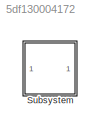
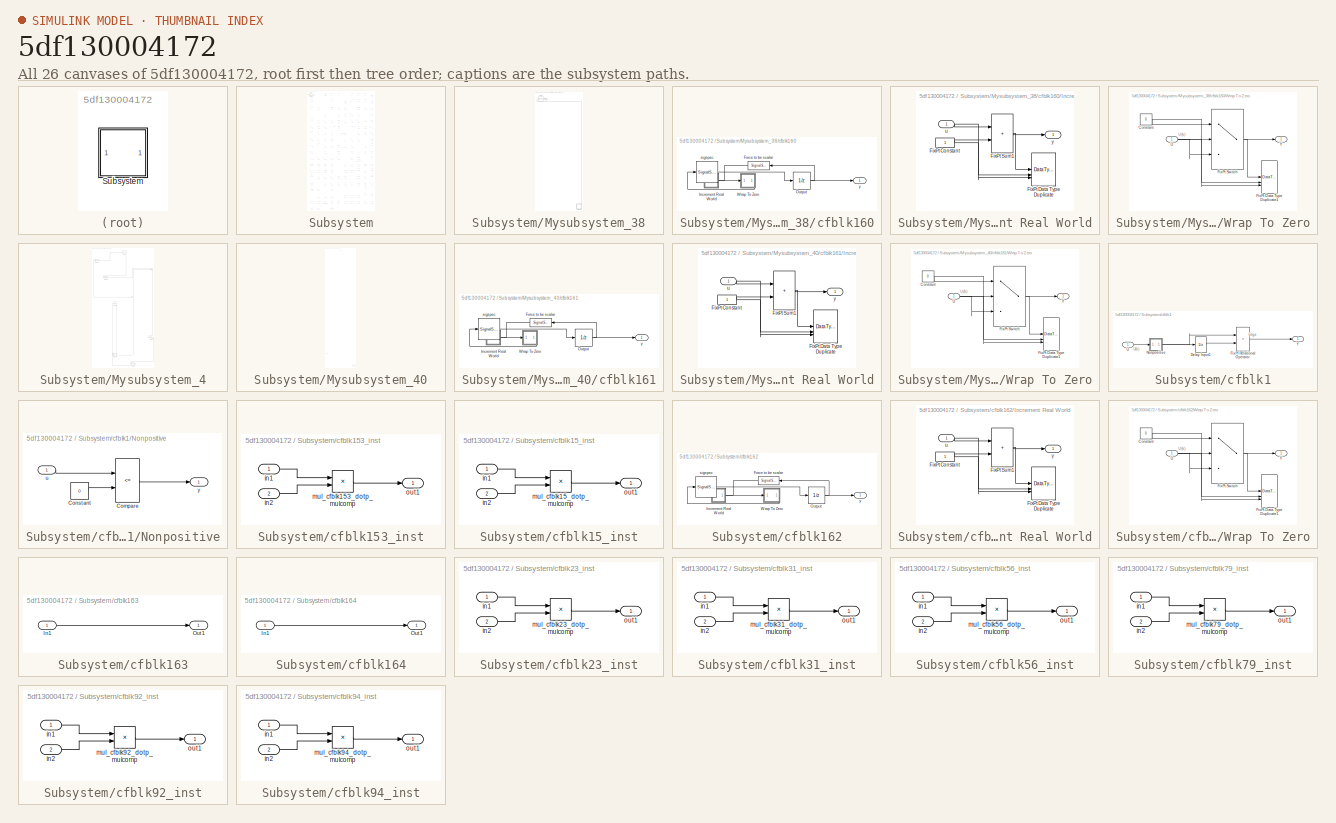
[diagram: thumbnail index - all 26 canvases of the model, root first then tree order]
MODEL slx_5df130004172
KIND model
CONFIG AbsTol = auto
CONFIG EnableMultiTasking = off
CONFIG FixedStep = auto
CONFIG MaxStep = auto
CONFIG MinStep = auto
CONFIG RelTol = 1e-3
CONFIG SampleTimeConstraint = Unconstrained
CONFIG SolverName = VariableStepAuto
CONFIG StartTime = 0.0
CONFIG StopTime = 10.0
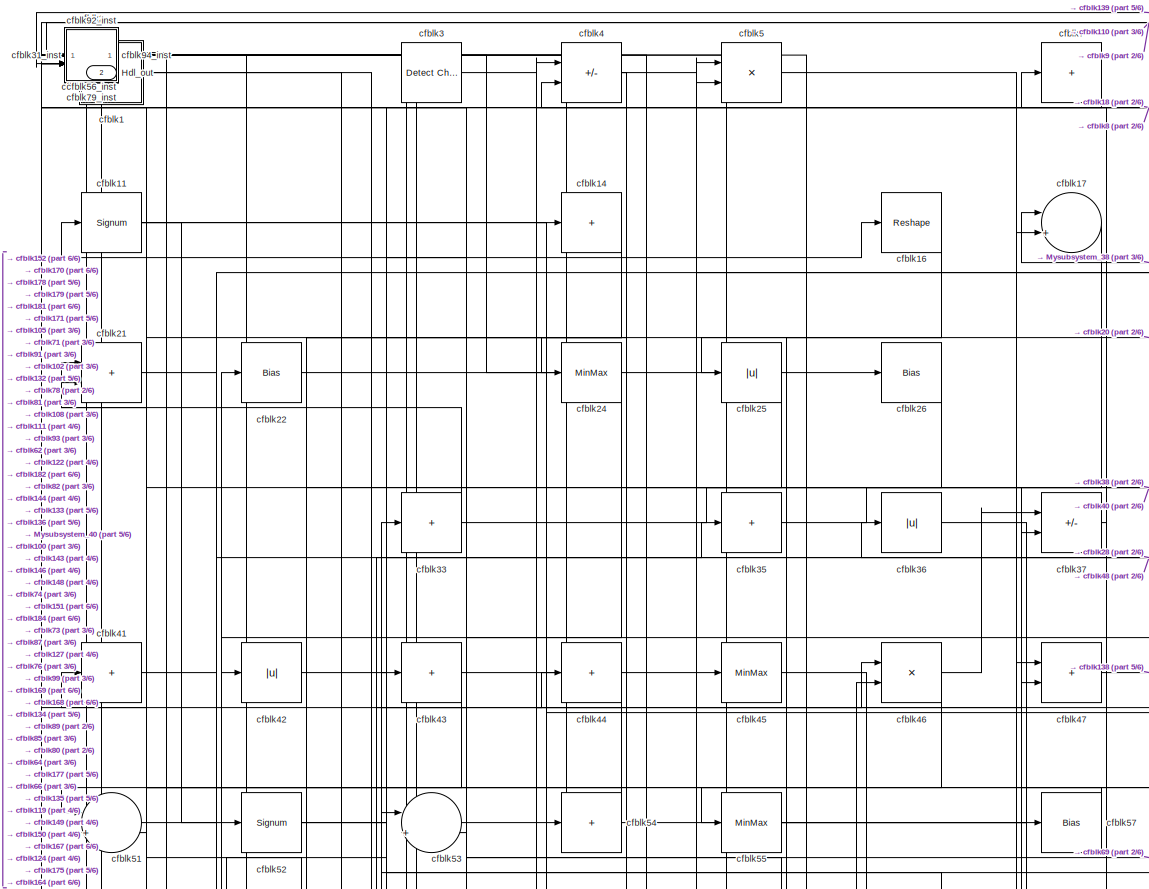
[diagram: Subsystem - part 1/6, top center region]
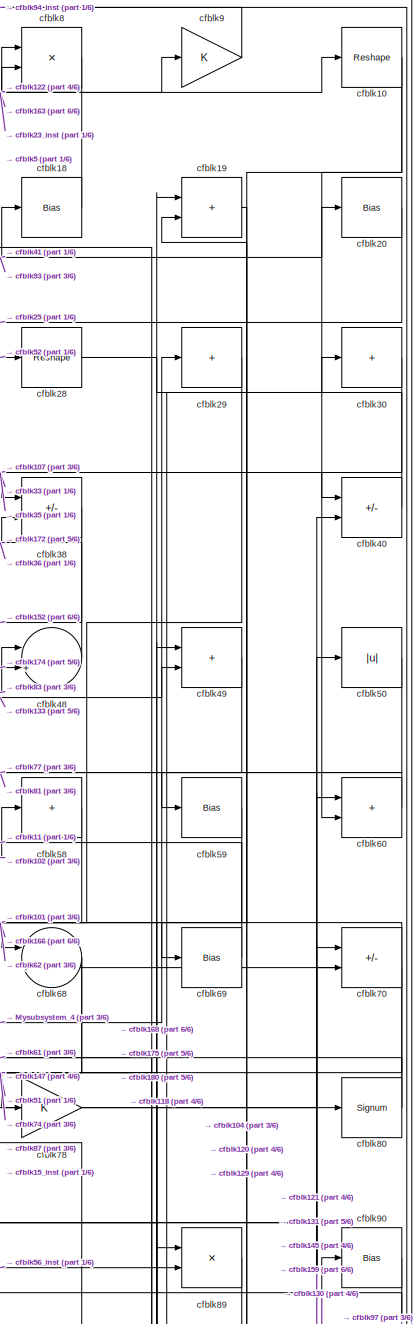
[diagram: Subsystem - part 2/6, top right region]
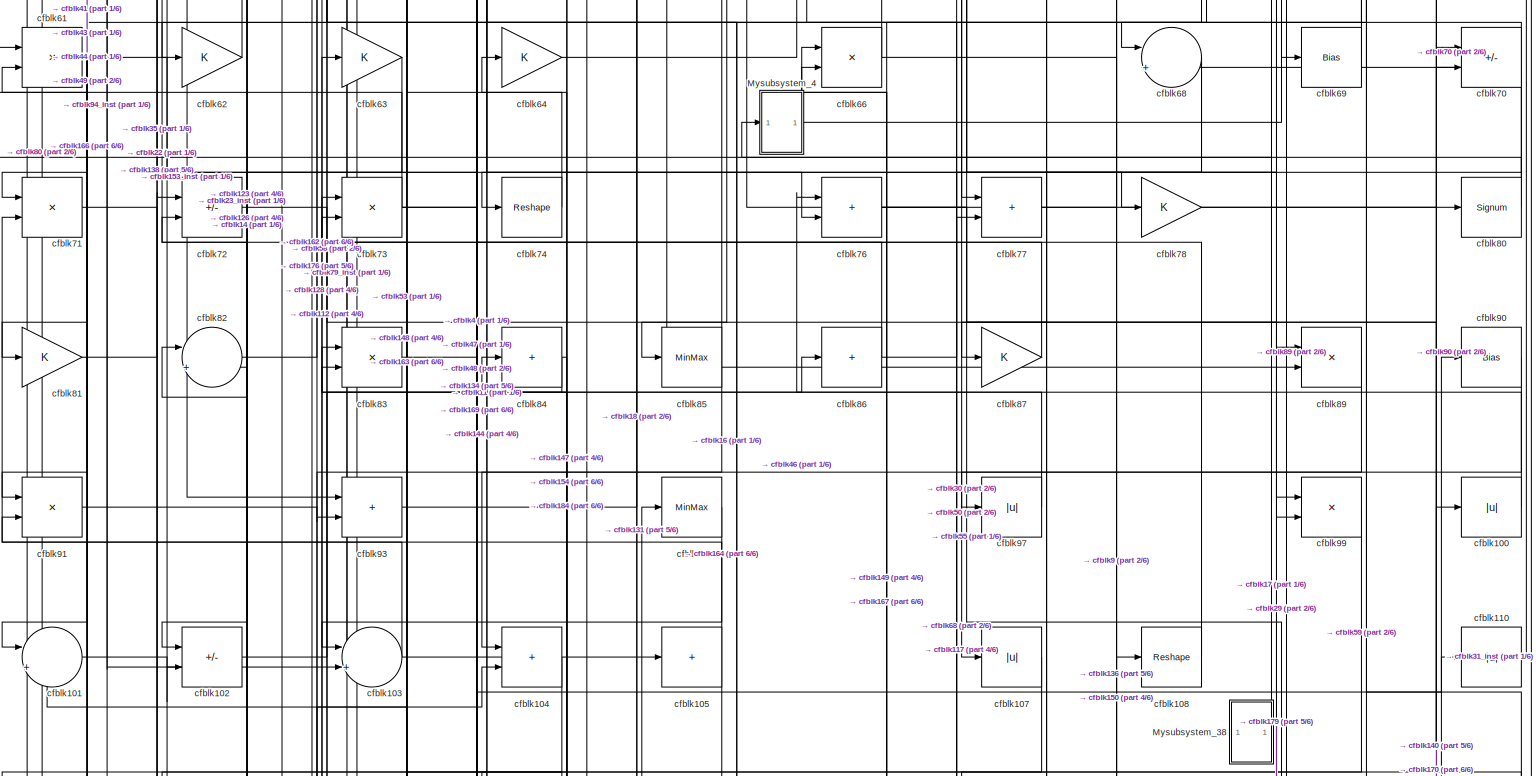
[diagram: Subsystem - part 3/6, full width, middle band]
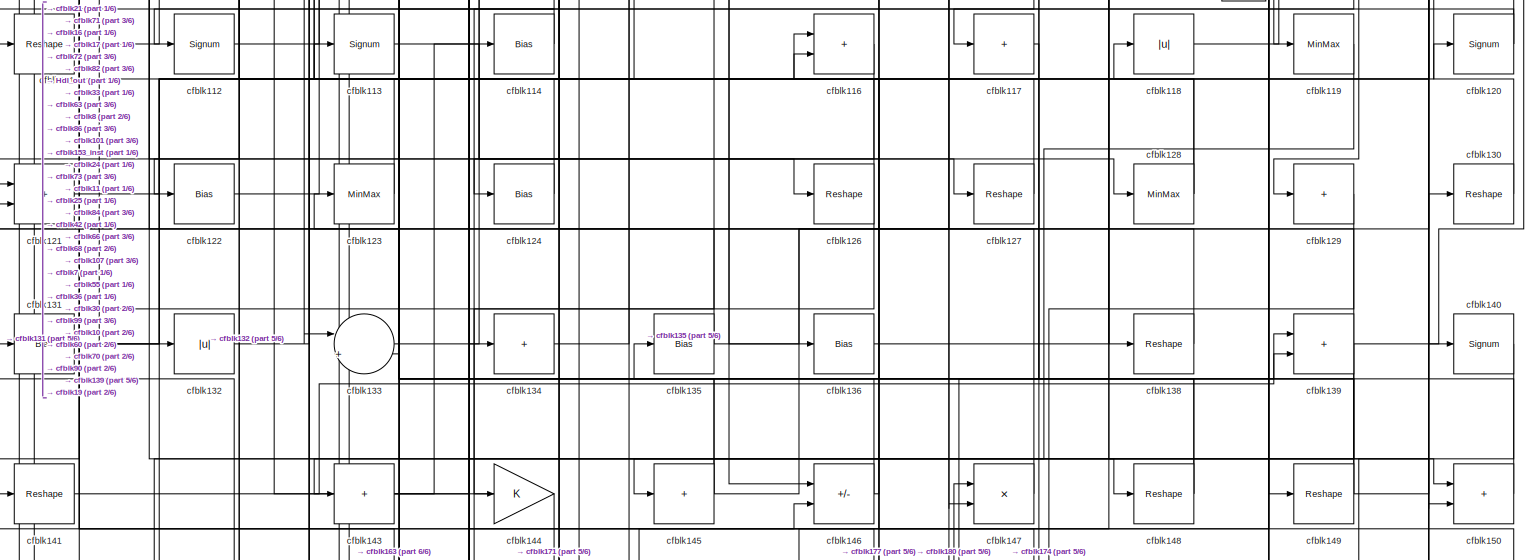
[diagram: Subsystem - part 4/6, full width, bottom band]
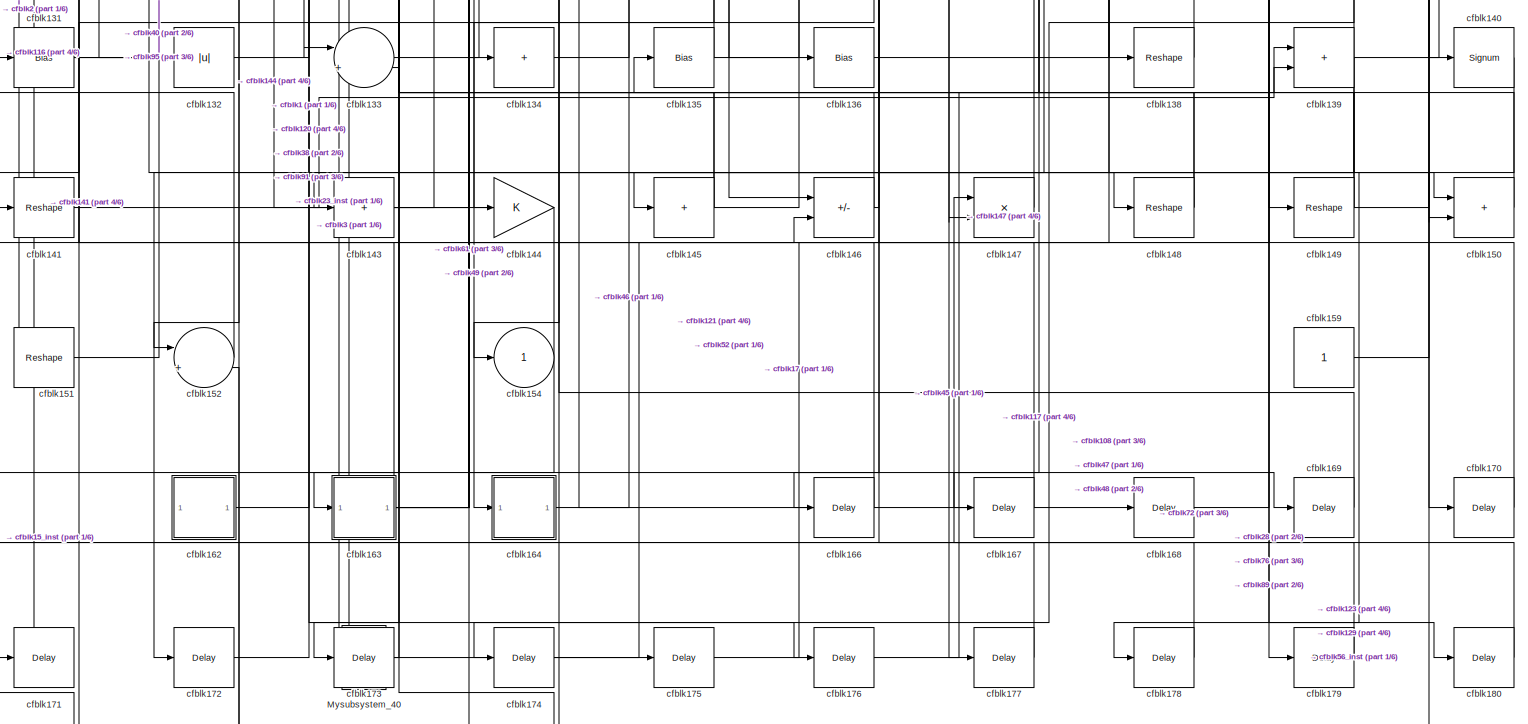
[diagram: Subsystem - part 5/6, full width, bottom band]
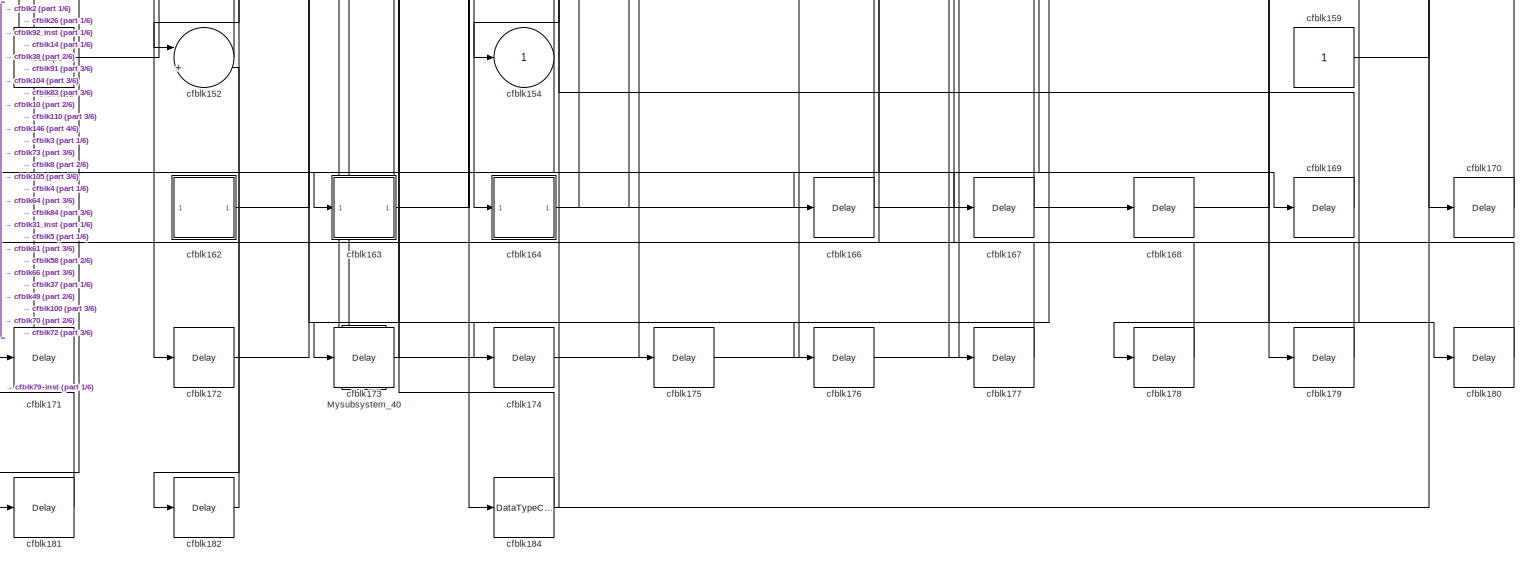
[diagram: Subsystem - part 6/6, full width, bottom band]
BLOCK [SubSystem] Subsystem
BLOCK [Outport] Subsystem/Hdl_out
  OutDataTypeStr = uint8
  Port = 2
  SampleTime = 1
BLOCK [SubSystem] Subsystem/Mysubsystem_38
BLOCK [Outport] Subsystem/Mysubsystem_38/Out1
  SampleTime = 1
BLOCK [SubSystem] Subsystem/Mysubsystem_38/cfblk160
BLOCK [SignalSpecification] Subsystem/Mysubsystem_38/cfblk160/Force to be scalar
  Dimensions = 1
  DisableCoverage = on
BLOCK [SubSystem] Subsystem/Mysubsystem_38/cfblk160/Increment Real World
BLOCK [Constant] Subsystem/Mysubsystem_38/cfblk160/Increment Real World/FixPt Constant
  DisableCoverage = on
  OutDataTypeStr = Inherit: Inherit via back propagation
  SampleTime = -1
BLOCK [DataTypeDuplicate] Subsystem/Mysubsystem_38/cfblk160/Increment Real World/FixPt Data Type Duplicate
  DisableCoverage = on
  NumInputPorts = 3
BLOCK [Sum] Subsystem/Mysubsystem_38/cfblk160/Increment Real World/FixPt Sum1
  IconShape = rectangular
  InputSameDT = on
  LockScale = on
  OutDataTypeStr = Inherit: Inherit via back propagation
BLOCK [Inport] Subsystem/Mysubsystem_38/cfblk160/Increment Real World/u
  OutDataTypeStr = uint16
  SampleTime = 1
BLOCK [Outport] Subsystem/Mysubsystem_38/cfblk160/Increment Real World/y
  SampleTime = 1
BLOCK [UnitDelay] Subsystem/Mysubsystem_38/cfblk160/Output
  HasFrameUpgradeWarning = on
  InitialCondition = 0.0
  SampleTime = tsamp
BLOCK [SubSystem] Subsystem/Mysubsystem_38/cfblk160/Wrap To Zero
BLOCK [Constant] Subsystem/Mysubsystem_38/cfblk160/Wrap To Zero/Constant
  DisableCoverage = on
  OutDataTypeStr = Inherit: Inherit via back propagation
  SampleTime = -1
  Value = 0
BLOCK [DataTypeDuplicate] Subsystem/Mysubsystem_38/cfblk160/Wrap To Zero/FixPt Data Type Duplicate1
  DisableCoverage = on
  NumInputPorts = 3
BLOCK [Switch] Subsystem/Mysubsystem_38/cfblk160/Wrap To Zero/FixPt Switch
  Criteria = u2 > Threshold
  InputSameDT = off
  OutDataTypeStr = Inherit: Inherit via back propagation
  SaturateOnIntegerOverflow = off
  Threshold = Threshold
  ZeroCross = off
BLOCK [Inport] Subsystem/Mysubsystem_38/cfblk160/Wrap To Zero/U
  OutDataTypeStr = uint16
  SampleTime = 1
BLOCK [Outport] Subsystem/Mysubsystem_38/cfblk160/Wrap To Zero/Y
  SampleTime = 1
BLOCK [SignalSpecification] Subsystem/Mysubsystem_38/cfblk160/sigspec
  Dimensions = 1
  OutDataTypeStr = uint16
BLOCK [Outport] Subsystem/Mysubsystem_38/cfblk160/y
  SampleTime = 1
BLOCK [Reshape] Subsystem/Mysubsystem_38/cfblk67
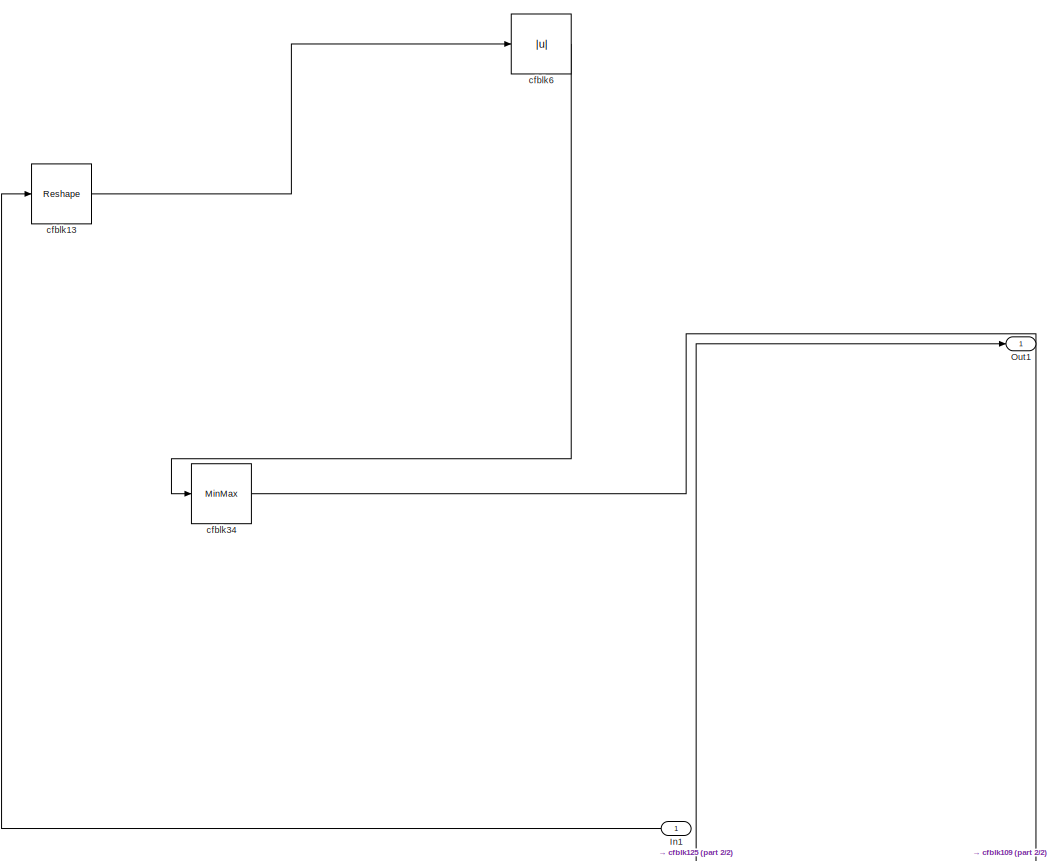
[diagram: Subsystem/Mysubsystem_4 - part 1/2, full width, top band]
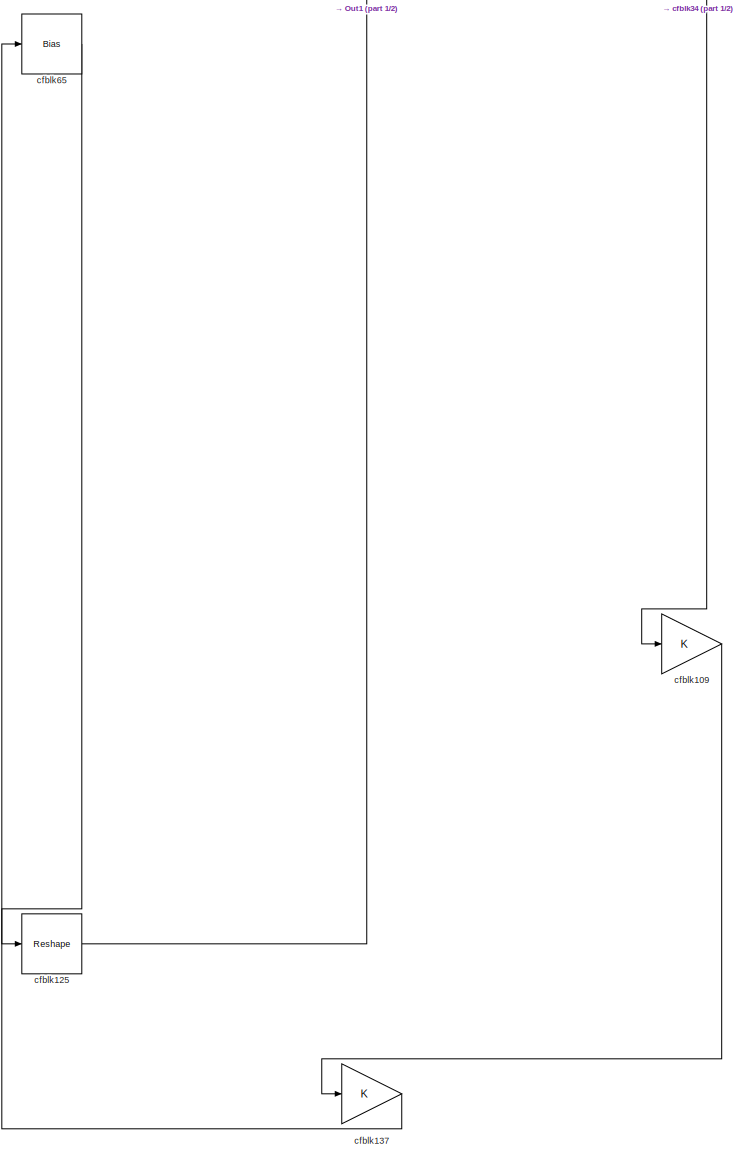
[diagram: Subsystem/Mysubsystem_4 - part 2/2, bottom center region]
BLOCK [SubSystem] Subsystem/Mysubsystem_4
BLOCK [Inport] Subsystem/Mysubsystem_4/In1
  OutDataTypeStr = uint16
  PortDimensions = 1
  SampleTime = 1
BLOCK [Outport] Subsystem/Mysubsystem_4/Out1
  SampleTime = 1
BLOCK [Gain] Subsystem/Mysubsystem_4/cfblk109
BLOCK [Reshape] Subsystem/Mysubsystem_4/cfblk125
BLOCK [Reshape] Subsystem/Mysubsystem_4/cfblk13
BLOCK [Gain] Subsystem/Mysubsystem_4/cfblk137
BLOCK [MinMax] Subsystem/Mysubsystem_4/cfblk34
BLOCK [Abs] Subsystem/Mysubsystem_4/cfblk6
  SaturateOnIntegerOverflow = off
BLOCK [Bias] Subsystem/Mysubsystem_4/cfblk65
  Bias = 0.0
  SaturateOnIntegerOverflow = off
BLOCK [SubSystem] Subsystem/Mysubsystem_40
BLOCK [Outport] Subsystem/Mysubsystem_40/Out1
  SampleTime = 1
BLOCK [SubSystem] Subsystem/Mysubsystem_40/cfblk161
BLOCK [SignalSpecification] Subsystem/Mysubsystem_40/cfblk161/Force to be scalar
  Dimensions = 1
  DisableCoverage = on
BLOCK [SubSystem] Subsystem/Mysubsystem_40/cfblk161/Increment Real World
BLOCK [Constant] Subsystem/Mysubsystem_40/cfblk161/Increment Real World/FixPt Constant
  DisableCoverage = on
  OutDataTypeStr = Inherit: Inherit via back propagation
  SampleTime = -1
BLOCK [DataTypeDuplicate] Subsystem/Mysubsystem_40/cfblk161/Increment Real World/FixPt Data Type Duplicate
  DisableCoverage = on
  NumInputPorts = 3
BLOCK [Sum] Subsystem/Mysubsystem_40/cfblk161/Increment Real World/FixPt Sum1
  IconShape = rectangular
  InputSameDT = on
  LockScale = on
  OutDataTypeStr = Inherit: Inherit via back propagation
BLOCK [Inport] Subsystem/Mysubsystem_40/cfblk161/Increment Real World/u
  OutDataTypeStr = uint16
  SampleTime = 1
BLOCK [Outport] Subsystem/Mysubsystem_40/cfblk161/Increment Real World/y
  SampleTime = 1
BLOCK [UnitDelay] Subsystem/Mysubsystem_40/cfblk161/Output
  HasFrameUpgradeWarning = on
  InitialCondition = 0.0
  SampleTime = tsamp
BLOCK [SubSystem] Subsystem/Mysubsystem_40/cfblk161/Wrap To Zero
BLOCK [Constant] Subsystem/Mysubsystem_40/cfblk161/Wrap To Zero/Constant
  DisableCoverage = on
  OutDataTypeStr = Inherit: Inherit via back propagation
  SampleTime = -1
  Value = 0
BLOCK [DataTypeDuplicate] Subsystem/Mysubsystem_40/cfblk161/Wrap To Zero/FixPt Data Type Duplicate1
  DisableCoverage = on
  NumInputPorts = 3
BLOCK [Switch] Subsystem/Mysubsystem_40/cfblk161/Wrap To Zero/FixPt Switch
  Criteria = u2 > Threshold
  InputSameDT = off
  OutDataTypeStr = Inherit: Inherit via back propagation
  SaturateOnIntegerOverflow = off
  Threshold = Threshold
  ZeroCross = off
BLOCK [Inport] Subsystem/Mysubsystem_40/cfblk161/Wrap To Zero/U
  OutDataTypeStr = uint16
  SampleTime = 1
BLOCK [Outport] Subsystem/Mysubsystem_40/cfblk161/Wrap To Zero/Y
  SampleTime = 1
BLOCK [SignalSpecification] Subsystem/Mysubsystem_40/cfblk161/sigspec
  Dimensions = 1
  OutDataTypeStr = uint16
BLOCK [Outport] Subsystem/Mysubsystem_40/cfblk161/y
  SampleTime = 1
BLOCK [DataTypeConversion] Subsystem/Mysubsystem_40/cfblk185
  OutDataTypeStr = uint8
  RndMeth = Floor
  SaturateOnIntegerOverflow = off
BLOCK [SubSystem] Subsystem/cfblk1
BLOCK [UnitDelay] Subsystem/cfblk1/Delay Input1
  Description = Store in Global RAM
  DisableCoverage = on
  HasFrameUpgradeWarning = on
  InitialCondition = vinit
  SampleTime = -1
BLOCK [RelationalOperator] Subsystem/cfblk1/FixPt Relational Operator
  InputSameDT = off
  Operator = >
  OutDataTypeStr = fixdt(0, 8)
  ZeroCross = off
BLOCK [SubSystem] Subsystem/cfblk1/Nonpositive
BLOCK [RelationalOperator] Subsystem/cfblk1/Nonpositive/Compare
  Operator = <=
  OutDataTypeStr = boolean
  ZeroCross = off
BLOCK [Constant] Subsystem/cfblk1/Nonpositive/Constant
  DisableCoverage = on
  OutDataTypeStr = Inherit: Inherit via back propagation
  PreserveConstantTs = on
  SampleTime = -1
  Value = 0
BLOCK [Inport] Subsystem/cfblk1/Nonpositive/u
  OutDataTypeStr = uint8
  SampleTime = 1
BLOCK [Outport] Subsystem/cfblk1/Nonpositive/y
  SampleTime = 1
BLOCK [Inport] Subsystem/cfblk1/U
  OutDataTypeStr = uint8
  SampleTime = 1
BLOCK [Outport] Subsystem/cfblk1/Y
  SampleTime = 1
BLOCK [Reshape] Subsystem/cfblk10
BLOCK [Abs] Subsystem/cfblk100
  OutDataTypeStr = uint8
  SaturateOnIntegerOverflow = off
BLOCK [Sum] Subsystem/cfblk101
  Inputs = |++
  OutDataTypeStr = uint8
BLOCK [Sum] Subsystem/cfblk102
  IconShape = rectangular
  Inputs = +-
  OutDataTypeStr = uint8
BLOCK [Sum] Subsystem/cfblk103
  Inputs = |++
  OutDataTypeStr = uint8
BLOCK [Sum] Subsystem/cfblk104
  IconShape = rectangular
  OutDataTypeStr = uint8
BLOCK [Sum] Subsystem/cfblk105
  IconShape = rectangular
  Inputs = +
  OutDataTypeStr = uint8
BLOCK [Abs] Subsystem/cfblk107
  OutDataTypeStr = uint8
  SaturateOnIntegerOverflow = off
BLOCK [Reshape] Subsystem/cfblk108
BLOCK [Signum] Subsystem/cfblk11
BLOCK [Abs] Subsystem/cfblk110
  OutDataTypeStr = uint8
  SaturateOnIntegerOverflow = off
BLOCK [Reshape] Subsystem/cfblk111
BLOCK [Signum] Subsystem/cfblk112
BLOCK [Signum] Subsystem/cfblk113
BLOCK [Bias] Subsystem/cfblk114
  Bias = 0.0
  SaturateOnIntegerOverflow = off
BLOCK [Sum] Subsystem/cfblk116
  IconShape = rectangular
  OutDataTypeStr = uint8
BLOCK [Sum] Subsystem/cfblk117
  IconShape = rectangular
  Inputs = +
  OutDataTypeStr = uint8
BLOCK [Abs] Subsystem/cfblk118
  OutDataTypeStr = uint8
  SaturateOnIntegerOverflow = off
BLOCK [MinMax] Subsystem/cfblk119
  OutDataTypeStr = uint8
BLOCK [Signum] Subsystem/cfblk120
BLOCK [Sum] Subsystem/cfblk121
  IconShape = rectangular
  OutDataTypeStr = uint8
BLOCK [Bias] Subsystem/cfblk122
  Bias = 0.0
  SaturateOnIntegerOverflow = off
BLOCK [MinMax] Subsystem/cfblk123
  OutDataTypeStr = uint8
BLOCK [Bias] Subsystem/cfblk124
  Bias = 0.0
  SaturateOnIntegerOverflow = off
BLOCK [Reshape] Subsystem/cfblk126
BLOCK [Reshape] Subsystem/cfblk127
BLOCK [MinMax] Subsystem/cfblk128
  OutDataTypeStr = uint8
BLOCK [Sum] Subsystem/cfblk129
  IconShape = rectangular
  Inputs = +
  OutDataTypeStr = uint8
BLOCK [Reshape] Subsystem/cfblk130
BLOCK [Bias] Subsystem/cfblk131
  Bias = 0.0
  SaturateOnIntegerOverflow = off
BLOCK [Abs] Subsystem/cfblk132
  OutDataTypeStr = uint8
  SaturateOnIntegerOverflow = off
BLOCK [Sum] Subsystem/cfblk133
  Inputs = |++
  OutDataTypeStr = uint8
BLOCK [Sum] Subsystem/cfblk134
  IconShape = rectangular
  Inputs = +
  OutDataTypeStr = uint8
BLOCK [Bias] Subsystem/cfblk135
  Bias = 0.0
  SaturateOnIntegerOverflow = off
BLOCK [Bias] Subsystem/cfblk136
  Bias = 0.0
  SaturateOnIntegerOverflow = off
BLOCK [Reshape] Subsystem/cfblk138
BLOCK [Sum] Subsystem/cfblk139
  IconShape = rectangular
  OutDataTypeStr = uint8
BLOCK [Sum] Subsystem/cfblk14
  IconShape = rectangular
  Inputs = +
  OutDataTypeStr = uint8
BLOCK [Signum] Subsystem/cfblk140
BLOCK [Reshape] Subsystem/cfblk141
BLOCK [Sum] Subsystem/cfblk143
  IconShape = rectangular
  Inputs = +
  OutDataTypeStr = uint8
BLOCK [Gain] Subsystem/cfblk144
  OutDataTypeStr = uint8
BLOCK [Sum] Subsystem/cfblk145
  IconShape = rectangular
  Inputs = +
  OutDataTypeStr = uint8
BLOCK [Sum] Subsystem/cfblk146
  IconShape = rectangular
  Inputs = +-
  OutDataTypeStr = uint8
BLOCK [Product] Subsystem/cfblk147
  Inputs = */
  OutDataTypeStr = uint8
  RndMeth = Zero
  SaturateOnIntegerOverflow = on
BLOCK [Reshape] Subsystem/cfblk148
BLOCK [Reshape] Subsystem/cfblk149
BLOCK [Sum] Subsystem/cfblk150
  IconShape = rectangular
  OutDataTypeStr = uint8
BLOCK [Reshape] Subsystem/cfblk151
BLOCK [Sum] Subsystem/cfblk152
  Inputs = |++
  OutDataTypeStr = uint8
BLOCK [SubSystem] Subsystem/cfblk153_inst
BLOCK [Inport] Subsystem/cfblk153_inst/in1
  OutDataTypeStr = uint8
  SampleTime = 1
BLOCK [Inport] Subsystem/cfblk153_inst/in2
  OutDataTypeStr = uint8
  Port = 2
  SampleTime = 1
BLOCK [Product] Subsystem/cfblk153_inst/mul_cfblk153_dotp_mulcomp
  Inputs = **
  OutDataTypeStr = uint8
  SampleTime = 1
BLOCK [Outport] Subsystem/cfblk153_inst/out1
  OutDataTypeStr = uint8
  SampleTime = 1
BLOCK [Outport] Subsystem/cfblk154
  OutDataTypeStr = uint8
  SampleTime = 1
  VectorParamsAs1DForOutWhenUnconnected = off
BLOCK [Constant] Subsystem/cfblk159
  OutDataTypeStr = uint8
  SampleTime = -1
BLOCK [SubSystem] Subsystem/cfblk15_inst
BLOCK [Inport] Subsystem/cfblk15_inst/in1
  OutDataTypeStr = uint8
  SampleTime = 1
BLOCK [Inport] Subsystem/cfblk15_inst/in2
  OutDataTypeStr = uint8
  Port = 2
  SampleTime = 1
BLOCK [Product] Subsystem/cfblk15_inst/mul_cfblk15_dotp_mulcomp
  Inputs = **
  OutDataTypeStr = uint8
  SampleTime = 1
BLOCK [Outport] Subsystem/cfblk15_inst/out1
  OutDataTypeStr = uint8
  SampleTime = 1
BLOCK [Reshape] Subsystem/cfblk16
BLOCK [SubSystem] Subsystem/cfblk162
BLOCK [SignalSpecification] Subsystem/cfblk162/Force to be scalar
  Dimensions = 1
  DisableCoverage = on
BLOCK [SubSystem] Subsystem/cfblk162/Increment Real World
BLOCK [Constant] Subsystem/cfblk162/Increment Real World/FixPt Constant
  DisableCoverage = on
  OutDataTypeStr = Inherit: Inherit via back propagation
  SampleTime = -1
BLOCK [DataTypeDuplicate] Subsystem/cfblk162/Increment Real World/FixPt Data Type Duplicate
  DisableCoverage = on
  NumInputPorts = 3
BLOCK [Sum] Subsystem/cfblk162/Increment Real World/FixPt Sum1
  IconShape = rectangular
  InputSameDT = on
  LockScale = on
  OutDataTypeStr = Inherit: Inherit via back propagation
BLOCK [Inport] Subsystem/cfblk162/Increment Real World/u
  OutDataTypeStr = uint8
  SampleTime = 1
BLOCK [Outport] Subsystem/cfblk162/Increment Real World/y
  SampleTime = 1
BLOCK [UnitDelay] Subsystem/cfblk162/Output
  HasFrameUpgradeWarning = on
  InitialCondition = 0.0
  SampleTime = tsamp
BLOCK [SubSystem] Subsystem/cfblk162/Wrap To Zero
BLOCK [Constant] Subsystem/cfblk162/Wrap To Zero/Constant
  DisableCoverage = on
  OutDataTypeStr = Inherit: Inherit via back propagation
  SampleTime = -1
  Value = 0
BLOCK [DataTypeDuplicate] Subsystem/cfblk162/Wrap To Zero/FixPt Data Type Duplicate1
  DisableCoverage = on
  NumInputPorts = 3
BLOCK [Switch] Subsystem/cfblk162/Wrap To Zero/FixPt Switch
  Criteria = u2 > Threshold
  InputSameDT = off
  OutDataTypeStr = Inherit: Inherit via back propagation
  SaturateOnIntegerOverflow = off
  Threshold = Threshold
  ZeroCross = off
BLOCK [Inport] Subsystem/cfblk162/Wrap To Zero/U
  OutDataTypeStr = uint8
  SampleTime = 1
BLOCK [Outport] Subsystem/cfblk162/Wrap To Zero/Y
  SampleTime = 1
BLOCK [SignalSpecification] Subsystem/cfblk162/sigspec
  Dimensions = 1
  OutDataTypeStr = uint8
BLOCK [Outport] Subsystem/cfblk162/y
  SampleTime = 1
BLOCK [SubSystem] Subsystem/cfblk163
BLOCK [Inport] Subsystem/cfblk163/In1
  OutDataTypeStr = uint8
  PortDimensions = 1
  SampleTime = 1
BLOCK [Outport] Subsystem/cfblk163/Out1
  SampleTime = 1
BLOCK [SubSystem] Subsystem/cfblk164
BLOCK [Inport] Subsystem/cfblk164/In1
  OutDataTypeStr = uint8
  PortDimensions = 1
  SampleTime = 1
BLOCK [Outport] Subsystem/cfblk164/Out1
  SampleTime = 1
BLOCK [Delay] Subsystem/cfblk166
  InputPortMap = u0
  SampleTime = 1
BLOCK [Delay] Subsystem/cfblk167
  InputPortMap = u0
  SampleTime = 1
BLOCK [Delay] Subsystem/cfblk168
  InputPortMap = u0
  SampleTime = 1
BLOCK [Delay] Subsystem/cfblk169
  InputPortMap = u0
  SampleTime = 1
BLOCK [Sum] Subsystem/cfblk17
  Inputs = |++
  OutDataTypeStr = uint8
BLOCK [Delay] Subsystem/cfblk170
  InputPortMap = u0
  SampleTime = 1
BLOCK [Delay] Subsystem/cfblk171
  InputPortMap = u0
  SampleTime = 1
BLOCK [Delay] Subsystem/cfblk172
  InputPortMap = u0
  SampleTime = 1
BLOCK [Delay] Subsystem/cfblk173
  InputPortMap = u0
  SampleTime = 1
BLOCK [Delay] Subsystem/cfblk174
  InputPortMap = u0
  SampleTime = 1
BLOCK [Delay] Subsystem/cfblk175
  InputPortMap = u0
  SampleTime = 1
BLOCK [Delay] Subsystem/cfblk176
  InputPortMap = u0
  SampleTime = 1
BLOCK [Delay] Subsystem/cfblk177
  InputPortMap = u0
  SampleTime = 1
BLOCK [Delay] Subsystem/cfblk178
  InputPortMap = u0
  SampleTime = 1
BLOCK [Delay] Subsystem/cfblk179
  InputPortMap = u0
  SampleTime = 1
BLOCK [Bias] Subsystem/cfblk18
  Bias = 0.0
  SaturateOnIntegerOverflow = off
BLOCK [Delay] Subsystem/cfblk180
  InputPortMap = u0
  SampleTime = 1
BLOCK [Delay] Subsystem/cfblk181
  InputPortMap = u0
  SampleTime = 1
BLOCK [Delay] Subsystem/cfblk182
  InputPortMap = u0
  SampleTime = 1
BLOCK [DataTypeConversion] Subsystem/cfblk184
  OutDataTypeStr = uint8
  RndMeth = Floor
  SaturateOnIntegerOverflow = off
BLOCK [Sum] Subsystem/cfblk19
  IconShape = rectangular
  OutDataTypeStr = uint8
BLOCK [Constant] Subsystem/cfblk2
  OutDataTypeStr = uint8
  SampleTime = 1
  Value = 0
BLOCK [Bias] Subsystem/cfblk20
  Bias = 0.0
  SaturateOnIntegerOverflow = off
BLOCK [Sum] Subsystem/cfblk21
  IconShape = rectangular
  OutDataTypeStr = uint8
BLOCK [Bias] Subsystem/cfblk22
  Bias = 0.0
  SaturateOnIntegerOverflow = off
BLOCK [SubSystem] Subsystem/cfblk23_inst
BLOCK [Inport] Subsystem/cfblk23_inst/in1
  OutDataTypeStr = uint8
  SampleTime = 1
BLOCK [Inport] Subsystem/cfblk23_inst/in2
  OutDataTypeStr = uint8
  Port = 2
  SampleTime = 1
BLOCK [Product] Subsystem/cfblk23_inst/mul_cfblk23_dotp_mulcomp
  Inputs = **
  OutDataTypeStr = uint8
  SampleTime = 1
BLOCK [Outport] Subsystem/cfblk23_inst/out1
  OutDataTypeStr = uint8
  SampleTime = 1
BLOCK [MinMax] Subsystem/cfblk24
  OutDataTypeStr = uint8
BLOCK [Abs] Subsystem/cfblk25
  OutDataTypeStr = uint8
  SaturateOnIntegerOverflow = off
BLOCK [Bias] Subsystem/cfblk26
  Bias = 0.0
  SaturateOnIntegerOverflow = off
BLOCK [Reshape] Subsystem/cfblk28
BLOCK [Sum] Subsystem/cfblk29
  IconShape = rectangular
  Inputs = +
  OutDataTypeStr = uint8
BLOCK [Reference] Subsystem/cfblk3  REF=simulink/Logic and Bit
Operations/Detect
Change
  LibrarySourceBlock = hdlsllib/Logic and Bit\nOperations/Detect\nChange
  SourceBlock = simulink/Logic and Bit\nOperations/Detect\nChange
  SourceType = Detect Change
BLOCK [Sum] Subsystem/cfblk30
  IconShape = rectangular
  Inputs = +
  OutDataTypeStr = uint8
BLOCK [SubSystem] Subsystem/cfblk31_inst
BLOCK [Inport] Subsystem/cfblk31_inst/in1
  OutDataTypeStr = uint8
  SampleTime = 1
BLOCK [Inport] Subsystem/cfblk31_inst/in2
  OutDataTypeStr = uint8
  Port = 2
  SampleTime = 1
BLOCK [Product] Subsystem/cfblk31_inst/mul_cfblk31_dotp_mulcomp
  Inputs = **
  OutDataTypeStr = uint8
  SampleTime = 1
BLOCK [Outport] Subsystem/cfblk31_inst/out1
  OutDataTypeStr = uint8
  SampleTime = 1
BLOCK [Sum] Subsystem/cfblk33
  IconShape = rectangular
  Inputs = +
  OutDataTypeStr = uint8
BLOCK [Sum] Subsystem/cfblk35
  IconShape = rectangular
  Inputs = +
  OutDataTypeStr = uint8
BLOCK [Abs] Subsystem/cfblk36
  OutDataTypeStr = uint8
  SaturateOnIntegerOverflow = off
BLOCK [Sum] Subsystem/cfblk37
  IconShape = rectangular
  Inputs = +-
  OutDataTypeStr = uint8
BLOCK [Sum] Subsystem/cfblk38
  IconShape = rectangular
  Inputs = +-
  OutDataTypeStr = uint8
BLOCK [Sum] Subsystem/cfblk4
  IconShape = rectangular
  Inputs = +-
  OutDataTypeStr = uint8
BLOCK [Sum] Subsystem/cfblk40
  IconShape = rectangular
  Inputs = +-
  OutDataTypeStr = uint8
BLOCK [Sum] Subsystem/cfblk41
  IconShape = rectangular
  Inputs = +
  OutDataTypeStr = uint8
BLOCK [Abs] Subsystem/cfblk42
  OutDataTypeStr = uint8
  SaturateOnIntegerOverflow = off
BLOCK [Sum] Subsystem/cfblk43
  IconShape = rectangular
  Inputs = +
  OutDataTypeStr = uint8
BLOCK [Sum] Subsystem/cfblk44
  IconShape = rectangular
  Inputs = +
  OutDataTypeStr = uint8
BLOCK [MinMax] Subsystem/cfblk45
  OutDataTypeStr = uint8
BLOCK [Product] Subsystem/cfblk46
  Inputs = */
  OutDataTypeStr = uint8
  RndMeth = Zero
  SaturateOnIntegerOverflow = on
BLOCK [Sum] Subsystem/cfblk47
  IconShape = rectangular
  OutDataTypeStr = uint8
BLOCK [Sum] Subsystem/cfblk48
  Inputs = |++
  OutDataTypeStr = uint8
BLOCK [Sum] Subsystem/cfblk49
  IconShape = rectangular
  OutDataTypeStr = uint8
BLOCK [Product] Subsystem/cfblk5
  Inputs = */
  OutDataTypeStr = uint8
  RndMeth = Zero
  SaturateOnIntegerOverflow = on
BLOCK [Abs] Subsystem/cfblk50
  OutDataTypeStr = uint8
  SaturateOnIntegerOverflow = off
BLOCK [Sum] Subsystem/cfblk51
  Inputs = |++
  OutDataTypeStr = uint8
BLOCK [Signum] Subsystem/cfblk52
BLOCK [Sum] Subsystem/cfblk53
  Inputs = |++
  OutDataTypeStr = uint8
BLOCK [Sum] Subsystem/cfblk54
  IconShape = rectangular
  Inputs = +
  OutDataTypeStr = uint8
BLOCK [MinMax] Subsystem/cfblk55
  OutDataTypeStr = uint8
BLOCK [SubSystem] Subsystem/cfblk56_inst
BLOCK [Inport] Subsystem/cfblk56_inst/in1
  OutDataTypeStr = uint8
  SampleTime = 1
BLOCK [Inport] Subsystem/cfblk56_inst/in2
  OutDataTypeStr = uint8
  Port = 2
  SampleTime = 1
BLOCK [Product] Subsystem/cfblk56_inst/mul_cfblk56_dotp_mulcomp
  Inputs = **
  OutDataTypeStr = uint8
  SampleTime = 1
BLOCK [Outport] Subsystem/cfblk56_inst/out1
  OutDataTypeStr = uint8
  SampleTime = 1
BLOCK [Bias] Subsystem/cfblk57
  Bias = 0.0
  SaturateOnIntegerOverflow = off
BLOCK [Sum] Subsystem/cfblk58
  IconShape = rectangular
  Inputs = +
  OutDataTypeStr = uint8
BLOCK [Bias] Subsystem/cfblk59
  Bias = 0.0
  SaturateOnIntegerOverflow = off
BLOCK [Sum] Subsystem/cfblk60
  IconShape = rectangular
  OutDataTypeStr = uint8
BLOCK [Product] Subsystem/cfblk61
  Inputs = */
  OutDataTypeStr = uint8
  RndMeth = Zero
  SaturateOnIntegerOverflow = on
BLOCK [Gain] Subsystem/cfblk62
  OutDataTypeStr = uint8
BLOCK [Gain] Subsystem/cfblk63
  OutDataTypeStr = uint8
BLOCK [Gain] Subsystem/cfblk64
  OutDataTypeStr = uint8
BLOCK [Product] Subsystem/cfblk66
  Inputs = */
  OutDataTypeStr = uint8
  RndMeth = Zero
  SaturateOnIntegerOverflow = on
BLOCK [Sum] Subsystem/cfblk68
  Inputs = |++
  OutDataTypeStr = uint8
BLOCK [Bias] Subsystem/cfblk69
  Bias = 0.0
  SaturateOnIntegerOverflow = off
BLOCK [Sum] Subsystem/cfblk7
  IconShape = rectangular
  Inputs = +
  OutDataTypeStr = uint8
BLOCK [Sum] Subsystem/cfblk70
  IconShape = rectangular
  Inputs = +-
  OutDataTypeStr = uint8
BLOCK [Product] Subsystem/cfblk71
  Inputs = */
  OutDataTypeStr = uint8
  RndMeth = Zero
  SaturateOnIntegerOverflow = on
BLOCK [Sum] Subsystem/cfblk72
  IconShape = rectangular
  Inputs = +-
  OutDataTypeStr = uint8
BLOCK [Product] Subsystem/cfblk73
  Inputs = */
  OutDataTypeStr = uint8
  RndMeth = Zero
  SaturateOnIntegerOverflow = on
BLOCK [Reshape] Subsystem/cfblk74
BLOCK [Sum] Subsystem/cfblk76
  IconShape = rectangular
  OutDataTypeStr = uint8
BLOCK [Sum] Subsystem/cfblk77
  IconShape = rectangular
  OutDataTypeStr = uint8
BLOCK [Gain] Subsystem/cfblk78
  OutDataTypeStr = uint8
BLOCK [SubSystem] Subsystem/cfblk79_inst
BLOCK [Inport] Subsystem/cfblk79_inst/in1
  OutDataTypeStr = uint8
  SampleTime = 1
BLOCK [Inport] Subsystem/cfblk79_inst/in2
  OutDataTypeStr = uint8
  Port = 2
  SampleTime = 1
BLOCK [Product] Subsystem/cfblk79_inst/mul_cfblk79_dotp_mulcomp
  Inputs = **
  OutDataTypeStr = uint8
  SampleTime = 1
BLOCK [Outport] Subsystem/cfblk79_inst/out1
  OutDataTypeStr = uint8
  SampleTime = 1
BLOCK [Product] Subsystem/cfblk8
  Inputs = */
  OutDataTypeStr = uint8
  RndMeth = Zero
  SaturateOnIntegerOverflow = on
BLOCK [Signum] Subsystem/cfblk80
BLOCK [Gain] Subsystem/cfblk81
  OutDataTypeStr = uint8
BLOCK [Sum] Subsystem/cfblk82
  Inputs = |++
  OutDataTypeStr = uint8
BLOCK [Product] Subsystem/cfblk83
  Inputs = */
  OutDataTypeStr = uint8
  RndMeth = Zero
  SaturateOnIntegerOverflow = on
BLOCK [Sum] Subsystem/cfblk84
  IconShape = rectangular
  Inputs = +
  OutDataTypeStr = uint8
BLOCK [MinMax] Subsystem/cfblk85
  OutDataTypeStr = uint8
BLOCK [Sum] Subsystem/cfblk86
  IconShape = rectangular
  Inputs = +
  OutDataTypeStr = uint8
BLOCK [Gain] Subsystem/cfblk87
  OutDataTypeStr = uint8
BLOCK [Product] Subsystem/cfblk89
  Inputs = */
  OutDataTypeStr = uint8
  RndMeth = Zero
  SaturateOnIntegerOverflow = on
BLOCK [Gain] Subsystem/cfblk9
  OutDataTypeStr = uint8
BLOCK [Bias] Subsystem/cfblk90
  Bias = 0.0
  SaturateOnIntegerOverflow = off
BLOCK [Product] Subsystem/cfblk91
  Inputs = */
  OutDataTypeStr = uint8
  RndMeth = Zero
  SaturateOnIntegerOverflow = on
BLOCK [SubSystem] Subsystem/cfblk92_inst
BLOCK [Inport] Subsystem/cfblk92_inst/in1
  OutDataTypeStr = uint8
  SampleTime = 1
BLOCK [Inport] Subsystem/cfblk92_inst/in2
  OutDataTypeStr = uint8
  Port = 2
  SampleTime = 1
BLOCK [Product] Subsystem/cfblk92_inst/mul_cfblk92_dotp_mulcomp
  Inputs = **
  OutDataTypeStr = uint8
  SampleTime = 1
BLOCK [Outport] Subsystem/cfblk92_inst/out1
  OutDataTypeStr = uint8
  SampleTime = 1
BLOCK [Sum] Subsystem/cfblk93
  IconShape = rectangular
  OutDataTypeStr = uint8
BLOCK [SubSystem] Subsystem/cfblk94_inst
BLOCK [Inport] Subsystem/cfblk94_inst/in1
  OutDataTypeStr = uint8
  SampleTime = 1
BLOCK [Inport] Subsystem/cfblk94_inst/in2
  OutDataTypeStr = uint8
  Port = 2
  SampleTime = 1
BLOCK [Product] Subsystem/cfblk94_inst/mul_cfblk94_dotp_mulcomp
  Inputs = **
  OutDataTypeStr = uint8
  SampleTime = 1
BLOCK [Outport] Subsystem/cfblk94_inst/out1
  OutDataTypeStr = uint8
  SampleTime = 1
BLOCK [MinMax] Subsystem/cfblk95
  OutDataTypeStr = uint8
BLOCK [Abs] Subsystem/cfblk97
  OutDataTypeStr = uint8
  SaturateOnIntegerOverflow = off
BLOCK [Product] Subsystem/cfblk99
  Inputs = */
  OutDataTypeStr = uint8
  RndMeth = Zero
  SaturateOnIntegerOverflow = on
ANNOTATION Subsystem/Mysubsystem_38/cfblk160/Wrap To Zero: U(k)
ANNOTATION Subsystem/Mysubsystem_40/cfblk161/Wrap To Zero: U(k)
ANNOTATION Subsystem/cfblk1: Edge
ANNOTATION Subsystem/cfblk1: U(k)
ANNOTATION Subsystem/cfblk162/Wrap To Zero: U(k)
LINE Subsystem/Mysubsystem_38/cfblk160:1 -> Subsystem/Mysubsystem_38/cfblk67:1
LINE Subsystem/Mysubsystem_38/cfblk67:1 -> Subsystem/Mysubsystem_38/Out1:1
NET Subsystem/Mysubsystem_38:1 -> Subsystem/Mysubsystem_4:1, Subsystem/cfblk17:1
LINE Subsystem/Mysubsystem_4/In1:1 -> Subsystem/Mysubsystem_4/cfblk13:1
LINE Subsystem/Mysubsystem_4/cfblk109:1 -> Subsystem/Mysubsystem_4/cfblk137:1
LINE Subsystem/Mysubsystem_4/cfblk125:1 -> Subsystem/Mysubsystem_4/Out1:1
LINE Subsystem/Mysubsystem_4/cfblk137:1 -> Subsystem/Mysubsystem_4/cfblk65:1
LINE Subsystem/Mysubsystem_4/cfblk13:1 -> Subsystem/Mysubsystem_4/cfblk6:1
LINE Subsystem/Mysubsystem_4/cfblk34:1 -> Subsystem/Mysubsystem_4/cfblk109:1
LINE Subsystem/Mysubsystem_4/cfblk65:1 -> Subsystem/Mysubsystem_4/cfblk125:1
LINE Subsystem/Mysubsystem_4/cfblk6:1 -> Subsystem/Mysubsystem_4/cfblk34:1
LINE Subsystem/Mysubsystem_40/cfblk161:1 -> Subsystem/Mysubsystem_40/cfblk185:1
LINE Subsystem/Mysubsystem_40/cfblk185:1 -> Subsystem/Mysubsystem_40/Out1:1
LINE Subsystem/Mysubsystem_40:1 -> Subsystem/cfblk3:1
LINE Subsystem/Mysubsystem_4:1 -> Subsystem/cfblk29:1
LINE Subsystem/cfblk100:1 -> Subsystem/cfblk53:2
LINE Subsystem/cfblk101:1 -> Subsystem/cfblk103:2
LINE Subsystem/cfblk102:1 -> Subsystem/cfblk58:1
LINE Subsystem/cfblk103:1 -> Subsystem/cfblk71:2
LINE Subsystem/cfblk104:1 -> Subsystem/cfblk163:1
NET Subsystem/cfblk105:1 -> Subsystem/cfblk164:1, Subsystem/cfblk41:1
LINE Subsystem/cfblk107:1 -> Subsystem/cfblk144:1
LINE Subsystem/cfblk108:1 -> Subsystem/cfblk22:1
NET Subsystem/cfblk10:1 -> Subsystem/cfblk129:1, Subsystem/cfblk60:2
LINE Subsystem/cfblk110:1 -> Subsystem/cfblk31_inst:1
LINE Subsystem/cfblk111:1 -> Subsystem/cfblk16:1
LINE Subsystem/cfblk112:1 -> Subsystem/cfblk86:1
LINE Subsystem/cfblk113:1 -> Subsystem/cfblk126:1
LINE Subsystem/cfblk114:1 -> Subsystem/cfblk112:1
LINE Subsystem/cfblk116:1 -> Subsystem/cfblk131:1
LINE Subsystem/cfblk117:1 -> Subsystem/cfblk135:1
LINE Subsystem/cfblk118:1 -> Subsystem/cfblk30:1
LINE Subsystem/cfblk119:1 -> Subsystem/cfblk145:1
NET Subsystem/cfblk11:1 -> Subsystem/cfblk127:1, Subsystem/cfblk52:1, Subsystem/cfblk76:2
NET Subsystem/cfblk120:1 -> Subsystem/cfblk111:1, Subsystem/cfblk19:2
LINE Subsystem/cfblk121:1 -> Subsystem/cfblk60:1
LINE Subsystem/cfblk122:1 -> Subsystem/cfblk8:1
LINE Subsystem/cfblk123:1 -> Subsystem/cfblk72:2
LINE Subsystem/cfblk124:1 -> Subsystem/cfblk33:1
NET Subsystem/cfblk126:1 -> Subsystem/cfblk141:1, Subsystem/cfblk82:1
LINE Subsystem/cfblk127:1 -> Subsystem/cfblk21:1
NET Subsystem/cfblk128:1 -> Subsystem/cfblk118:1, Subsystem/cfblk63:1
LINE Subsystem/cfblk129:1 -> Subsystem/cfblk174:1
LINE Subsystem/cfblk130:1 -> Subsystem/cfblk90:1
NET Subsystem/cfblk131:1 -> Subsystem/cfblk40:2, Subsystem/cfblk95:1
LINE Subsystem/cfblk132:1 -> Subsystem/cfblk120:1
LINE Subsystem/cfblk133:1 -> Subsystem/cfblk49:2
LINE Subsystem/cfblk134:1 -> Subsystem/cfblk46:1
NET Subsystem/cfblk135:1 -> Subsystem/cfblk121:1, Subsystem/cfblk17:2
LINE Subsystem/cfblk136:1 -> Subsystem/cfblk108:1
LINE Subsystem/cfblk138:1 -> Subsystem/cfblk72:1
NET Subsystem/cfblk139:1 -> Subsystem/cfblk123:1, Subsystem/cfblk172:1, Subsystem/cfblk173:1, Subsystem/cfblk56_inst:2
LINE Subsystem/cfblk140:1 -> Subsystem/cfblk178:1
LINE Subsystem/cfblk141:1 -> Subsystem/cfblk139:1
NET Subsystem/cfblk143:1 -> Subsystem/cfblk114:1, Subsystem/cfblk150:1
NET Subsystem/cfblk144:1 -> Subsystem/Hdl_out:1, Subsystem/cfblk171:1
NET Subsystem/cfblk145:1 -> Subsystem/cfblk113:1, Subsystem/cfblk121:2, Subsystem/cfblk70:2
NET Subsystem/cfblk146:1 -> Subsystem/cfblk116:1, Subsystem/cfblk153_inst:1
LINE Subsystem/cfblk147:1 -> Subsystem/cfblk84:1
NET Subsystem/cfblk148:1 -> Subsystem/cfblk153_inst:2, Subsystem/cfblk73:1
NET Subsystem/cfblk149:1 -> Subsystem/cfblk101:2, Subsystem/cfblk130:1, Subsystem/cfblk66:1
NET Subsystem/cfblk14:1 -> Subsystem/cfblk182:1, Subsystem/cfblk42:1, Subsystem/cfblk82:2
LINE Subsystem/cfblk150:1 -> Subsystem/cfblk7:1
LINE Subsystem/cfblk151:1 -> Subsystem/cfblk14:1
LINE Subsystem/cfblk152:1 -> Subsystem/cfblk92_inst:1
LINE Subsystem/cfblk153_inst/in1:1 -> Subsystem/cfblk153_inst/mul_cfblk153_dotp_mulcomp:1
LINE Subsystem/cfblk153_inst/in2:1 -> Subsystem/cfblk153_inst/mul_cfblk153_dotp_mulcomp:2
LINE Subsystem/cfblk153_inst/mul_cfblk153_dotp_mulcomp:1 -> Subsystem/cfblk153_inst/out1:1
NET Subsystem/cfblk153_inst:1 -> Subsystem/cfblk45:1, Subsystem/cfblk93:1
LINE Subsystem/cfblk159:1 -> Subsystem/cfblk70:1
LINE Subsystem/cfblk15_inst/in1:1 -> Subsystem/cfblk15_inst/mul_cfblk15_dotp_mulcomp:1
LINE Subsystem/cfblk15_inst/in2:1 -> Subsystem/cfblk15_inst/mul_cfblk15_dotp_mulcomp:2
LINE Subsystem/cfblk15_inst/mul_cfblk15_dotp_mulcomp:1 -> Subsystem/cfblk15_inst/out1:1
LINE Subsystem/cfblk15_inst:1 -> Subsystem/cfblk80:1
LINE Subsystem/cfblk162:1 -> Subsystem/cfblk104:2
LINE Subsystem/cfblk163/In1:1 -> Subsystem/cfblk163/Out1:1
NET Subsystem/cfblk163:1 -> Subsystem/cfblk10:1, Subsystem/cfblk110:1, Subsystem/cfblk146:2, Subsystem/cfblk8:2, Subsystem/cfblk91:2
LINE Subsystem/cfblk164/In1:1 -> Subsystem/cfblk164/Out1:1
LINE Subsystem/cfblk164:1 -> Subsystem/cfblk5:2
LINE Subsystem/cfblk166:1 -> Subsystem/cfblk61:2
LINE Subsystem/cfblk167:1 -> Subsystem/cfblk66:2
LINE Subsystem/cfblk168:1 -> Subsystem/cfblk49:1
LINE Subsystem/cfblk169:1 -> Subsystem/cfblk4:2
NET Subsystem/cfblk16:1 -> Subsystem/cfblk51:2, Subsystem/cfblk85:1
LINE Subsystem/cfblk170:1 -> Subsystem/cfblk92_inst:2
LINE Subsystem/cfblk171:1 -> Subsystem/cfblk1:1
LINE Subsystem/cfblk172:1 -> Subsystem/cfblk38:2
LINE Subsystem/cfblk173:1 -> Subsystem/cfblk133:2
LINE Subsystem/cfblk174:1 -> Subsystem/cfblk48:2
LINE Subsystem/cfblk175:1 -> Subsystem/cfblk89:1
LINE Subsystem/cfblk176:1 -> Subsystem/cfblk139:2
LINE Subsystem/cfblk177:1 -> Subsystem/cfblk116:2
LINE Subsystem/cfblk178:1 -> Subsystem/cfblk15_inst:2
LINE Subsystem/cfblk179:1 -> Subsystem/cfblk56_inst:1
LINE Subsystem/cfblk17:1 -> Subsystem/cfblk122:1
LINE Subsystem/cfblk180:1 -> Subsystem/cfblk147:1
LINE Subsystem/cfblk181:1 -> Subsystem/cfblk79_inst:1
LINE Subsystem/cfblk182:1 -> Subsystem/cfblk152:2
NET Subsystem/cfblk184:1 -> Subsystem/cfblk100:1, Subsystem/cfblk64:1, Subsystem/cfblk83:1
LINE Subsystem/cfblk18:1 -> Subsystem/cfblk5:1
LINE Subsystem/cfblk19:1 -> Subsystem/cfblk69:1
LINE Subsystem/cfblk1:1 -> Subsystem/cfblk133:1
LINE Subsystem/cfblk20:1 -> Subsystem/cfblk25:1
LINE Subsystem/cfblk21:1 -> Subsystem/cfblk148:1
LINE Subsystem/cfblk22:1 -> Subsystem/cfblk99:1
LINE Subsystem/cfblk23_inst/in1:1 -> Subsystem/cfblk23_inst/mul_cfblk23_dotp_mulcomp:1
LINE Subsystem/cfblk23_inst/in2:1 -> Subsystem/cfblk23_inst/mul_cfblk23_dotp_mulcomp:2
LINE Subsystem/cfblk23_inst/mul_cfblk23_dotp_mulcomp:1 -> Subsystem/cfblk23_inst/out1:1
LINE Subsystem/cfblk23_inst:1 -> Subsystem/cfblk175:1
LINE Subsystem/cfblk24:1 -> Subsystem/cfblk143:1
LINE Subsystem/cfblk25:1 -> Subsystem/cfblk124:1
LINE Subsystem/cfblk26:1 -> Subsystem/cfblk181:1
LINE Subsystem/cfblk28:1 -> Subsystem/cfblk180:1
LINE Subsystem/cfblk29:1 -> Subsystem/cfblk68:1
NET Subsystem/cfblk2:1 -> Subsystem/cfblk132:1, Subsystem/cfblk151:1
LINE Subsystem/cfblk30:1 -> Subsystem/cfblk107:1
LINE Subsystem/cfblk31_inst/in1:1 -> Subsystem/cfblk31_inst/mul_cfblk31_dotp_mulcomp:1
LINE Subsystem/cfblk31_inst/in2:1 -> Subsystem/cfblk31_inst/mul_cfblk31_dotp_mulcomp:2
LINE Subsystem/cfblk31_inst/mul_cfblk31_dotp_mulcomp:1 -> Subsystem/cfblk31_inst/out1:1
LINE Subsystem/cfblk31_inst:1 -> Subsystem/cfblk168:1
NET Subsystem/cfblk33:1 -> Subsystem/cfblk21:2, Subsystem/cfblk40:1
LINE Subsystem/cfblk35:1 -> Subsystem/cfblk38:1
LINE Subsystem/cfblk36:1 -> Subsystem/cfblk119:1
LINE Subsystem/cfblk37:1 -> Subsystem/cfblk167:1
LINE Subsystem/cfblk38:1 -> Subsystem/cfblk152:1
LINE Subsystem/cfblk3:1 -> Subsystem/cfblk184:1
LINE Subsystem/cfblk40:1 -> Subsystem/cfblk19:1
LINE Subsystem/cfblk41:1 -> Subsystem/cfblk20:1
LINE Subsystem/cfblk42:1 -> Subsystem/cfblk146:1
LINE Subsystem/cfblk43:1 -> Subsystem/cfblk91:1
LINE Subsystem/cfblk44:1 -> Subsystem/cfblk71:1
LINE Subsystem/cfblk45:1 -> Subsystem/cfblk177:1
NET Subsystem/cfblk46:1 -> Subsystem/cfblk37:1, Subsystem/cfblk51:1
LINE Subsystem/cfblk47:1 -> Subsystem/cfblk138:1
LINE Subsystem/cfblk48:1 -> Subsystem/cfblk36:1
LINE Subsystem/cfblk49:1 -> Subsystem/cfblk81:1
NET Subsystem/cfblk4:1 -> Subsystem/cfblk24:1, Subsystem/cfblk37:2
LINE Subsystem/cfblk50:1 -> Subsystem/cfblk77:1
LINE Subsystem/cfblk51:1 -> Subsystem/cfblk78:1
NET Subsystem/cfblk52:1 -> Subsystem/cfblk136:1, Subsystem/cfblk28:1
LINE Subsystem/cfblk53:1 -> Subsystem/cfblk54:1
LINE Subsystem/cfblk54:1 -> Subsystem/cfblk15_inst:1
NET Subsystem/cfblk55:1 -> Subsystem/cfblk149:1, Subsystem/cfblk99:2
LINE Subsystem/cfblk56_inst/in1:1 -> Subsystem/cfblk56_inst/mul_cfblk56_dotp_mulcomp:1
LINE Subsystem/cfblk56_inst/in2:1 -> Subsystem/cfblk56_inst/mul_cfblk56_dotp_mulcomp:2
LINE Subsystem/cfblk56_inst/mul_cfblk56_dotp_mulcomp:1 -> Subsystem/cfblk56_inst/out1:1
LINE Subsystem/cfblk56_inst:1 -> Subsystem/cfblk89:2
LINE Subsystem/cfblk57:1 -> Subsystem/cfblk55:1
LINE Subsystem/cfblk58:1 -> Subsystem/cfblk166:1
LINE Subsystem/cfblk59:1 -> Subsystem/cfblk101:1
LINE Subsystem/cfblk5:1 -> Subsystem/cfblk47:1
LINE Subsystem/cfblk60:1 -> Subsystem/cfblk59:1
LINE Subsystem/cfblk61:1 -> Subsystem/cfblk134:1
LINE Subsystem/cfblk62:1 -> Subsystem/cfblk23_inst:1
LINE Subsystem/cfblk63:1 -> Subsystem/cfblk102:1
LINE Subsystem/cfblk64:1 -> Subsystem/cfblk46:2
NET Subsystem/cfblk66:1 -> Subsystem/cfblk150:2, Subsystem/cfblk53:1
NET Subsystem/cfblk68:1 -> Subsystem/cfblk147:2, Subsystem/cfblk87:1
LINE Subsystem/cfblk69:1 -> Subsystem/cfblk11:1
NET Subsystem/cfblk70:1 -> Subsystem/cfblk62:1, Subsystem/cfblk74:1
LINE Subsystem/cfblk71:1 -> Subsystem/cfblk128:1
LINE Subsystem/cfblk72:1 -> Subsystem/cfblk170:1
NET Subsystem/cfblk73:1 -> Subsystem/cfblk169:1, Subsystem/cfblk31_inst:2, Subsystem/cfblk47:2
LINE Subsystem/cfblk74:1 -> Subsystem/cfblk43:1
NET Subsystem/cfblk76:1 -> Subsystem/cfblk140:1, Subsystem/cfblk179:1
LINE Subsystem/cfblk77:1 -> Subsystem/cfblk9:1
LINE Subsystem/cfblk78:1 -> Subsystem/cfblk50:1
LINE Subsystem/cfblk79_inst/in1:1 -> Subsystem/cfblk79_inst/mul_cfblk79_dotp_mulcomp:1
LINE Subsystem/cfblk79_inst/in2:1 -> Subsystem/cfblk79_inst/mul_cfblk79_dotp_mulcomp:2
LINE Subsystem/cfblk79_inst/mul_cfblk79_dotp_mulcomp:1 -> Subsystem/cfblk79_inst/out1:1
NET Subsystem/cfblk79_inst:1 -> Subsystem/cfblk105:1, Subsystem/cfblk26:1
LINE Subsystem/cfblk7:1 -> Subsystem/cfblk94_inst:2
NET Subsystem/cfblk80:1 -> Subsystem/cfblk61:1, Subsystem/cfblk68:2
LINE Subsystem/cfblk81:1 -> Subsystem/cfblk35:1
LINE Subsystem/cfblk82:1 -> Subsystem/cfblk44:1
LINE Subsystem/cfblk83:1 -> Subsystem/cfblk48:1
NET Subsystem/cfblk84:1 -> Subsystem/cfblk154:1, Subsystem/cfblk83:2
NET Subsystem/cfblk85:1 -> Subsystem/cfblk79_inst:2, Subsystem/cfblk93:2
NET Subsystem/cfblk86:1 -> Subsystem/cfblk73:2, Subsystem/cfblk77:2
LINE Subsystem/cfblk87:1 -> Subsystem/cfblk4:1
LINE Subsystem/cfblk89:1 -> Subsystem/cfblk104:1
LINE Subsystem/cfblk8:1 -> Subsystem/cfblk23_inst:2
LINE Subsystem/cfblk90:1 -> Subsystem/cfblk97:1
LINE Subsystem/cfblk91:1 -> Subsystem/cfblk176:1
LINE Subsystem/cfblk92_inst/in1:1 -> Subsystem/cfblk92_inst/mul_cfblk92_dotp_mulcomp:1
LINE Subsystem/cfblk92_inst/in2:1 -> Subsystem/cfblk92_inst/mul_cfblk92_dotp_mulcomp:2
LINE Subsystem/cfblk92_inst/mul_cfblk92_dotp_mulcomp:1 -> Subsystem/cfblk92_inst/out1:1
LINE Subsystem/cfblk92_inst:1 -> Subsystem/cfblk57:1
LINE Subsystem/cfblk93:1 -> Subsystem/cfblk18:1
LINE Subsystem/cfblk94_inst/in1:1 -> Subsystem/cfblk94_inst/mul_cfblk94_dotp_mulcomp:1
LINE Subsystem/cfblk94_inst/in2:1 -> Subsystem/cfblk94_inst/mul_cfblk94_dotp_mulcomp:2
LINE Subsystem/cfblk94_inst/mul_cfblk94_dotp_mulcomp:1 -> Subsystem/cfblk94_inst/out1:1
LINE Subsystem/cfblk94_inst:1 -> Subsystem/cfblk102:2
LINE Subsystem/cfblk95:1 -> Subsystem/cfblk103:1
LINE Subsystem/cfblk97:1 -> Subsystem/cfblk76:1
LINE Subsystem/cfblk99:1 -> Subsystem/cfblk117:1
LINE Subsystem/cfblk9:1 -> Subsystem/cfblk94_inst:1
note: NET lines group one-source signal fan-out (src -> all destinations, sorted); 1:1 wires keep LINE
